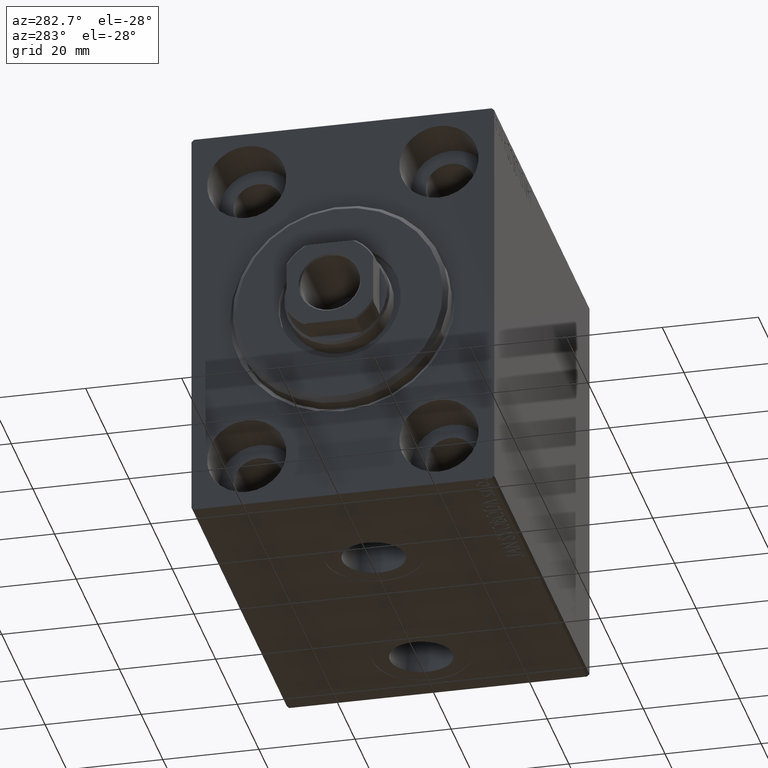
[diagram: clean part render]
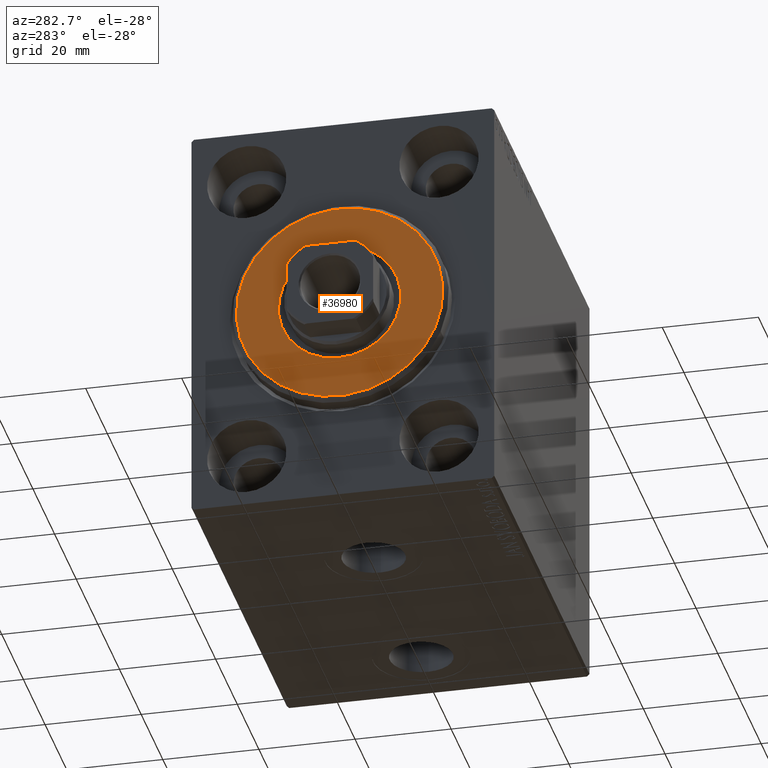
[diagram: same view with one face highlighted and labeled with its STEP entity id]
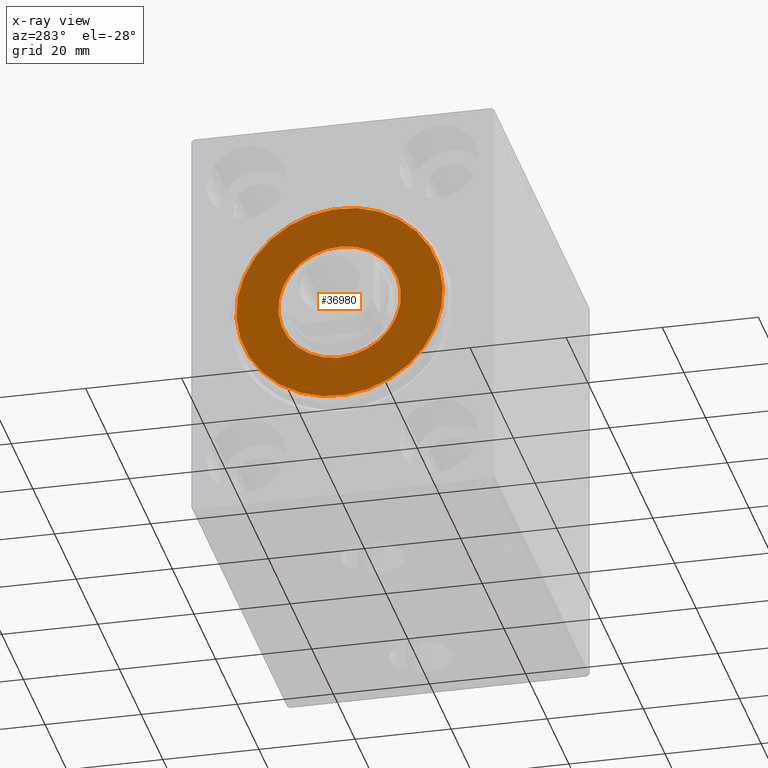
[diagram: x-ray of the same camera — body ghosted, the highlighted face saturated]
A machine part, auxiliary view. The second image highlights one B-rep face of the part: STEP entity #36980.
The next image is the same camera in x-ray: the body ghosted, the highlighted face saturated — about 0% of this face is hidden behind the body in this view.
In plain terms, the highlighted planar face has unit normal (-1, 0, 0).
Its self-contained STEP definition (entity closure, byte-faithful):
#1298 = VERTEX_POINT ( 'NONE', #24499 ) ;
#1342 = FACE_BOUND ( 'NONE', #27932, .T. ) ;
#5107 = CARTESIAN_POINT ( 'NONE',  ( 3.000000000000000000, 0.000000000000000000, 0.000000000000000000 ) ) ;
#5676 = AXIS2_PLACEMENT_3D ( 'NONE', #13456, #27414, #19870 ) ;
#6333 = EDGE_LOOP ( 'NONE', ( #35773, #44376 ) ) ;
#9026 = ORIENTED_EDGE ( 'NONE', *, *, #21082, .T. ) ;
#10595 = DIRECTION ( 'NONE',  ( -1.000000000000000000, 0.000000000000000000, -0.000000000000000000 ) ) ;
#10701 = CIRCLE ( 'NONE', #19559, 12.75000000000000000 ) ;
#13456 = CARTESIAN_POINT ( 'NONE',  ( 3.000000000000000000, 0.000000000000000000, 0.000000000000000000 ) ) ;
#17114 = EDGE_CURVE ( 'NONE', #38930, #43309, #44282, .T. ) ;
#18314 = ORIENTED_EDGE ( 'NONE', *, *, #42150, .T. ) ;
#18707 = PLANE ( 'NONE',  #29879 ) ;
#19559 = AXIS2_PLACEMENT_3D ( 'NONE', #5107, #43494, #19728 ) ;
#19728 = DIRECTION ( 'NONE',  ( 0.000000000000000000, 0.000000000000000000, -1.000000000000000000 ) ) ;
#19870 = DIRECTION ( 'NONE',  ( 0.000000000000000000, 0.000000000000000000, -1.000000000000000000 ) ) ;
#21082 = EDGE_CURVE ( 'NONE', #1298, #38332, #10701, .T. ) ;
#23301 = DIRECTION ( 'NONE',  ( 1.000000000000000000, -0.000000000000000000, 0.000000000000000000 ) ) ;
#24149 = AXIS2_PLACEMENT_3D ( 'NONE', #27994, #10595, #24554 ) ;
#24499 = CARTESIAN_POINT ( 'NONE',  ( 3.000000000000000000, 1.561424668912874914E-15, -12.75000000000000000 ) ) ;
#24554 = DIRECTION ( 'NONE',  ( 0.000000000000000000, 0.000000000000000000, -1.000000000000000000 ) ) ;
#24640 = EDGE_CURVE ( 'NONE', #43309, #38930, #38546, .T. ) ;
#26026 = FACE_OUTER_BOUND ( 'NONE', #6333, .T. ) ;
#27414 = DIRECTION ( 'NONE',  ( 1.000000000000000000, -0.000000000000000000, 0.000000000000000000 ) ) ;
#27932 = EDGE_LOOP ( 'NONE', ( #18314, #9026 ) ) ;
#27994 = CARTESIAN_POINT ( 'NONE',  ( 3.000000000000000000, 0.000000000000000000, 0.000000000000000000 ) ) ;
#28515 = CIRCLE ( 'NONE', #24149, 12.75000000000000000 ) ;
#29240 = DIRECTION ( 'NONE',  ( 0.000000000000000000, 0.000000000000000000, -1.000000000000000000 ) ) ;
#29879 = AXIS2_PLACEMENT_3D ( 'NONE', #32891, #32659, #29240 ) ;
#32383 = CARTESIAN_POINT ( 'NONE',  ( 3.000000000000000000, 2.694222958124177598E-15, -21.50000000000000355 ) ) ;
#32659 = DIRECTION ( 'NONE',  ( 1.000000000000000000, -0.000000000000000000, 0.000000000000000000 ) ) ;
#32891 = CARTESIAN_POINT ( 'NONE',  ( 3.000000000000000000, 0.000000000000000000, 0.000000000000000000 ) ) ;
#33149 = DIRECTION ( 'NONE',  ( 0.000000000000000000, 0.000000000000000000, -1.000000000000000000 ) ) ;
#35773 = ORIENTED_EDGE ( 'NONE', *, *, #17114, .T. ) ;
#36779 = CARTESIAN_POINT ( 'NONE',  ( 3.000000000000000000, 0.000000000000000000, 0.000000000000000000 ) ) ;
#36980 = ADVANCED_FACE ( 'NONE', ( #26026, #1342 ), #18707, .T. ) ;
#38332 = VERTEX_POINT ( 'NONE', #39888 ) ;
#38546 = CIRCLE ( 'NONE', #5676, 21.50000000000000355 ) ;
#38930 = VERTEX_POINT ( 'NONE', #43600 ) ;
#39888 = CARTESIAN_POINT ( 'NONE',  ( 3.000000000000000000, 0.000000000000000000, 12.75000000000000000 ) ) ;
#42150 = EDGE_CURVE ( 'NONE', #38332, #1298, #28515, .T. ) ;
#43309 = VERTEX_POINT ( 'NONE', #32383 ) ;
#43494 = DIRECTION ( 'NONE',  ( -1.000000000000000000, 0.000000000000000000, -0.000000000000000000 ) ) ;
#43600 = CARTESIAN_POINT ( 'NONE',  ( 3.000000000000000000, 0.000000000000000000, 21.50000000000000355 ) ) ;
#44282 = CIRCLE ( 'NONE', #45001, 21.50000000000000355 ) ;
#44376 = ORIENTED_EDGE ( 'NONE', *, *, #24640, .T. ) ;
#45001 = AXIS2_PLACEMENT_3D ( 'NONE', #36779, #23301, #33149 ) ;